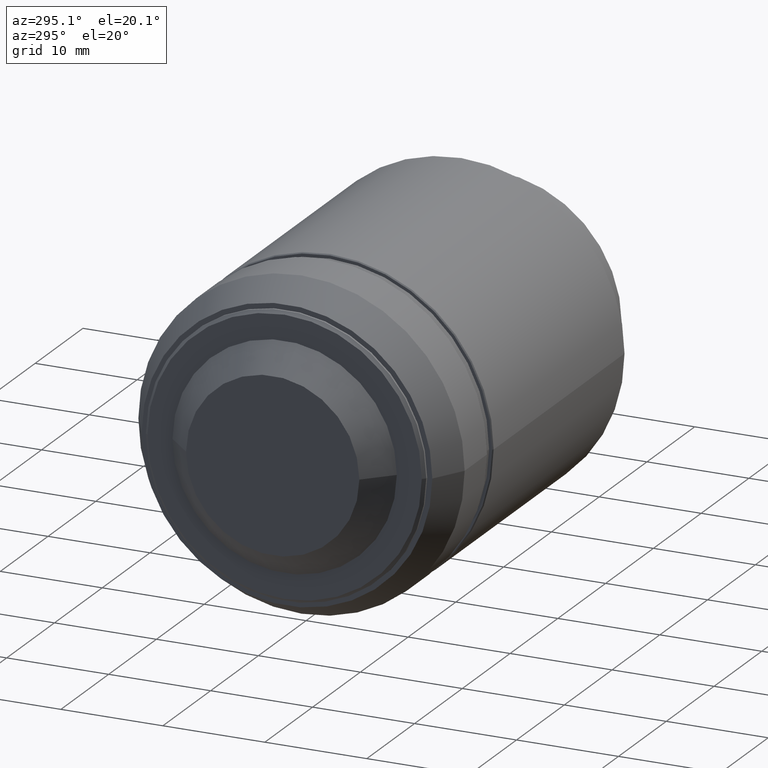
[diagram: clean part render]
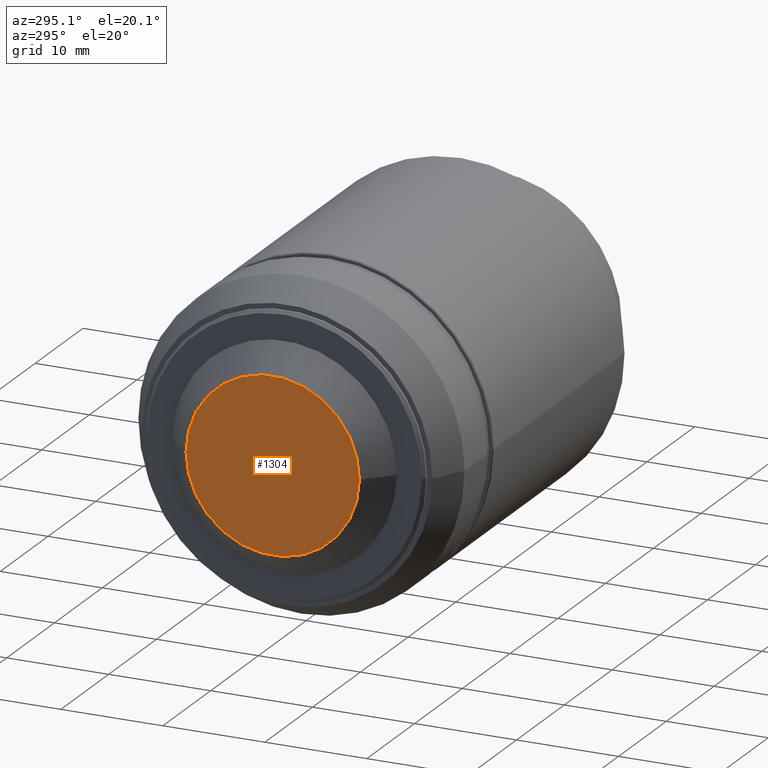
[diagram: same view with one face highlighted and labeled with its STEP entity id]
A machine part, auxiliary view. The second image highlights one B-rep face of the part: STEP entity #1304.
In plain terms, the highlighted planar face has unit normal (-1, -0, 0).
Its self-contained STEP definition (entity closure, byte-faithful):
#70 = ORIENTED_EDGE ( 'NONE', *, *, #1001, .F. ) ;
#246 = CARTESIAN_POINT ( 'NONE',  ( -4.000000000000000000, 8.500000000000000000, -1.040949779275249943E-15 ) ) ;
#259 = AXIS2_PLACEMENT_3D ( 'NONE', #294, #815, #1365 ) ;
#294 = CARTESIAN_POINT ( 'NONE',  ( -4.000000000000000000, -5.968558980384839763E-15, 0.000000000000000000 ) ) ;
#311 = CARTESIAN_POINT ( 'NONE',  ( -4.000000000000000000, 4.250000000000000000, 0.000000000000000000 ) ) ;
#382 = AXIS2_PLACEMENT_3D ( 'NONE', #311, #535, #755 ) ;
#409 = AXIS2_PLACEMENT_3D ( 'NONE', #412, #662, #644 ) ;
#412 = CARTESIAN_POINT ( 'NONE',  ( -4.000000000000000000, -5.968558980384839763E-15, 0.000000000000000000 ) ) ;
#506 = ORIENTED_EDGE ( 'NONE', *, *, #654, .F. ) ;
#511 = CARTESIAN_POINT ( 'NONE',  ( -4.000000000000000000, -8.500000000000000000, 0.000000000000000000 ) ) ;
#534 = CIRCLE ( 'NONE', #409, 8.500000000000000000 ) ;
#535 = DIRECTION ( 'NONE',  ( -1.000000000000000000, -1.421085471520199908E-16, 0.000000000000000000 ) ) ;
#577 = VERTEX_POINT ( 'NONE', #511 ) ;
#644 = DIRECTION ( 'NONE',  ( -1.020425574104004122E-16, 1.000000000000000000, 0.000000000000000000 ) ) ;
#654 = EDGE_CURVE ( 'NONE', #808, #577, #534, .T. ) ;
#662 = DIRECTION ( 'NONE',  ( 1.000000000000000000, 1.421085471520199908E-16, 0.000000000000000000 ) ) ;
#755 = DIRECTION ( 'NONE',  ( -1.421085471520199908E-16, 1.000000000000000000, 0.000000000000000000 ) ) ;
#808 = VERTEX_POINT ( 'NONE', #246 ) ;
#815 = DIRECTION ( 'NONE',  ( 1.000000000000000000, 1.421085471520199908E-16, 0.000000000000000000 ) ) ;
#967 = FACE_OUTER_BOUND ( 'NONE', #1327, .T. ) ;
#1001 = EDGE_CURVE ( 'NONE', #577, #808, #1252, .T. ) ;
#1252 = CIRCLE ( 'NONE', #259, 8.500000000000000000 ) ;
#1304 = ADVANCED_FACE ( 'NONE', ( #967 ), #1407, .T. ) ;
#1327 = EDGE_LOOP ( 'NONE', ( #70, #506 ) ) ;
#1365 = DIRECTION ( 'NONE',  ( -1.020425574104004122E-16, 1.000000000000000000, 0.000000000000000000 ) ) ;
#1407 = PLANE ( 'NONE',  #382 ) ;